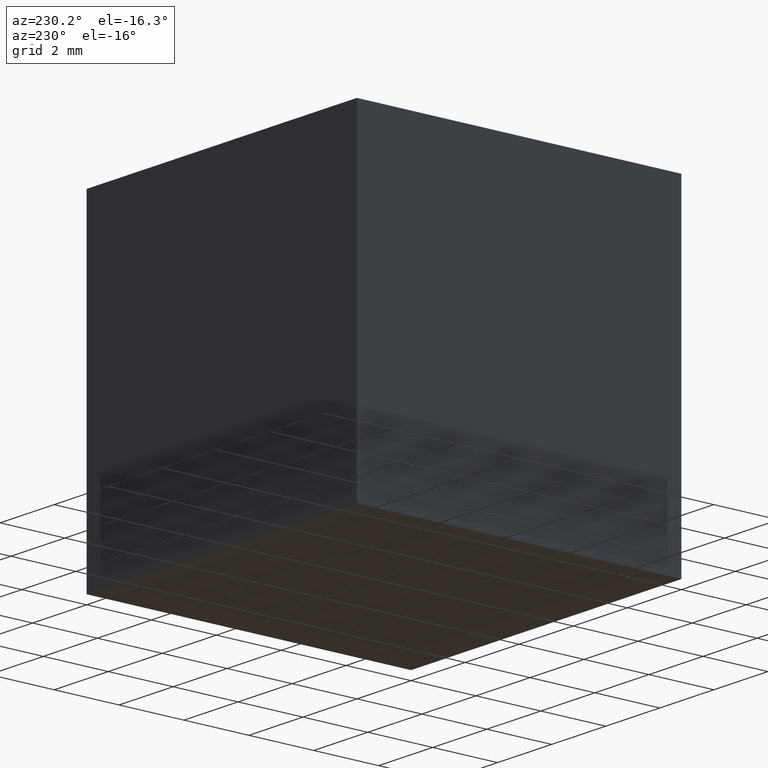
[diagram: clean part render]
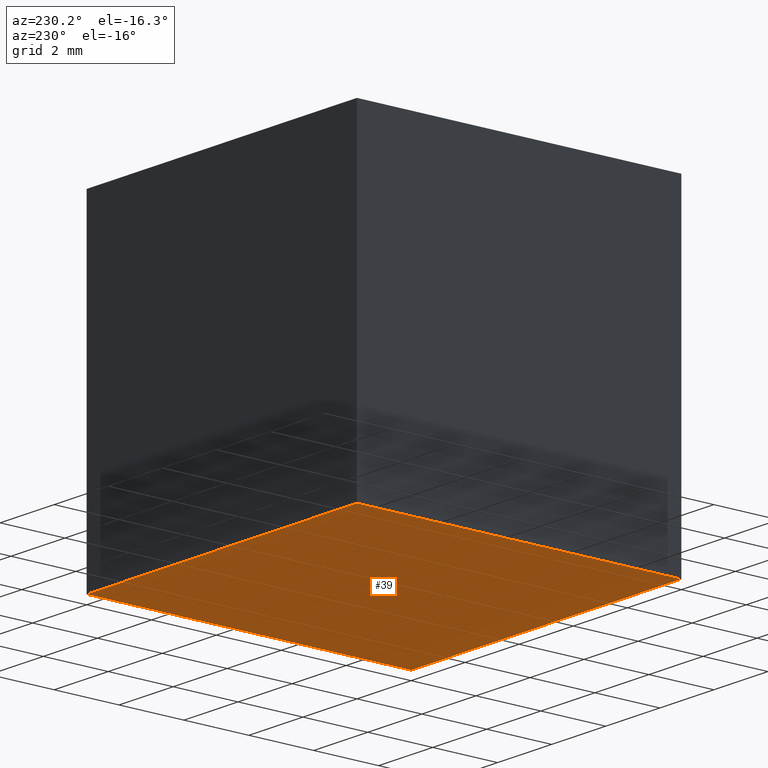
[diagram: same view with one face highlighted and labeled with its STEP entity id]
A machine part, auxiliary view. The second image highlights one B-rep face of the part: STEP entity #39.
In plain terms, the highlighted planar face has unit normal (0, -0, 1).
Its self-contained STEP definition (entity closure, byte-faithful):
#25 = CARTESIAN_POINT ( 'NONE',  ( 0.0000000000000000000, 10.00000000000000000, -10.00000000000000000 ) ) ;
#26 = CARTESIAN_POINT ( 'NONE',  ( 0.0000000000000000000, 10.00000000000000000, -10.00000000000000000 ) ) ;
#30 = CARTESIAN_POINT ( 'NONE',  ( -10.00000000000000000, 10.00000000000000000, -9.999999999999996400 ) ) ;
#39 = ADVANCED_FACE ( 'NONE', ( #224 ), #91, .F. ) ;
#44 = DIRECTION ( 'NONE',  ( -1.000000000000000000, 0.0000000000000000000, 3.469446951953614200E-016 ) ) ;
#52 = LINE ( 'NONE', #87, #179 ) ;
#56 = VERTEX_POINT ( 'NONE', #142 ) ;
#61 = DIRECTION ( 'NONE',  ( -0.0000000000000000000, -1.000000000000000000, -0.0000000000000000000 ) ) ;
#68 = VECTOR ( 'NONE', #264, 1000.000000000000000 ) ;
#69 = EDGE_CURVE ( 'NONE', #177, #296, #139, .T. ) ;
#74 = DIRECTION ( 'NONE',  ( 3.469446951953614200E-016, -0.0000000000000000000, 1.000000000000000000 ) ) ;
#80 = VERTEX_POINT ( 'NONE', #290 ) ;
#87 = CARTESIAN_POINT ( 'NONE',  ( 0.0000000000000000000, 0.0000000000000000000, -10.00000000000000000 ) ) ;
#91 = PLANE ( 'NONE',  #291 ) ;
#95 = VECTOR ( 'NONE', #61, 1000.000000000000000 ) ;
#119 = CARTESIAN_POINT ( 'NONE',  ( 0.0000000000000000000, 10.00000000000000000, -10.00000000000000000 ) ) ;
#120 = ORIENTED_EDGE ( 'NONE', *, *, #69, .F. ) ;
#139 = LINE ( 'NONE', #30, #68 ) ;
#142 = CARTESIAN_POINT ( 'NONE',  ( 0.0000000000000000000, 0.0000000000000000000, -10.00000000000000000 ) ) ;
#149 = ORIENTED_EDGE ( 'NONE', *, *, #219, .T. ) ;
#165 = EDGE_CURVE ( 'NONE', #56, #296, #52, .T. ) ;
#172 = ORIENTED_EDGE ( 'NONE', *, *, #165, .T. ) ;
#173 = VECTOR ( 'NONE', #44, 1000.000000000000000 ) ;
#177 = VERTEX_POINT ( 'NONE', #283 ) ;
#179 = VECTOR ( 'NONE', #236, 1000.000000000000000 ) ;
#185 = EDGE_CURVE ( 'NONE', #80, #177, #238, .T. ) ;
#194 = DIRECTION ( 'NONE',  ( 1.000000000000000000, 0.0000000000000000000, -3.469446951953614200E-016 ) ) ;
#219 = EDGE_CURVE ( 'NONE', #80, #56, #289, .T. ) ;
#224 = FACE_OUTER_BOUND ( 'NONE', #252, .T. ) ;
#236 = DIRECTION ( 'NONE',  ( -1.000000000000000000, 0.0000000000000000000, 3.469446951953614200E-016 ) ) ;
#238 = LINE ( 'NONE', #26, #173 ) ;
#252 = EDGE_LOOP ( 'NONE', ( #172, #120, #278, #149 ) ) ;
#264 = DIRECTION ( 'NONE',  ( -0.0000000000000000000, -1.000000000000000000, -0.0000000000000000000 ) ) ;
#278 = ORIENTED_EDGE ( 'NONE', *, *, #185, .F. ) ;
#279 = CARTESIAN_POINT ( 'NONE',  ( -10.00000000000000000, 0.0000000000000000000, -9.999999999999996400 ) ) ;
#283 = CARTESIAN_POINT ( 'NONE',  ( -10.00000000000000000, 10.00000000000000000, -9.999999999999996400 ) ) ;
#289 = LINE ( 'NONE', #25, #95 ) ;
#290 = CARTESIAN_POINT ( 'NONE',  ( 0.0000000000000000000, 10.00000000000000000, -10.00000000000000000 ) ) ;
#291 = AXIS2_PLACEMENT_3D ( 'NONE', #119, #74, #194 ) ;
#296 = VERTEX_POINT ( 'NONE', #279 ) ;